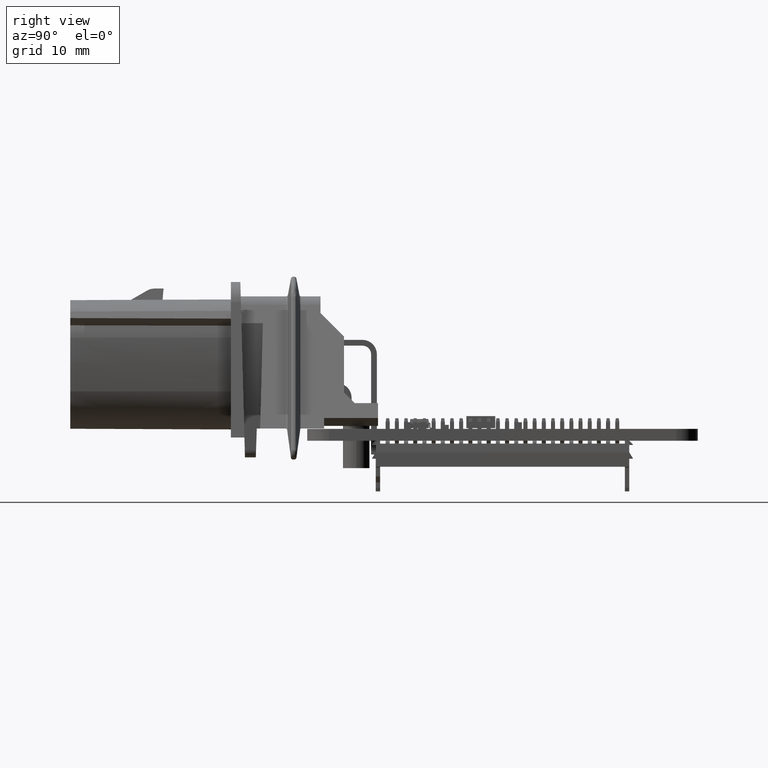
[diagram: clean part render]
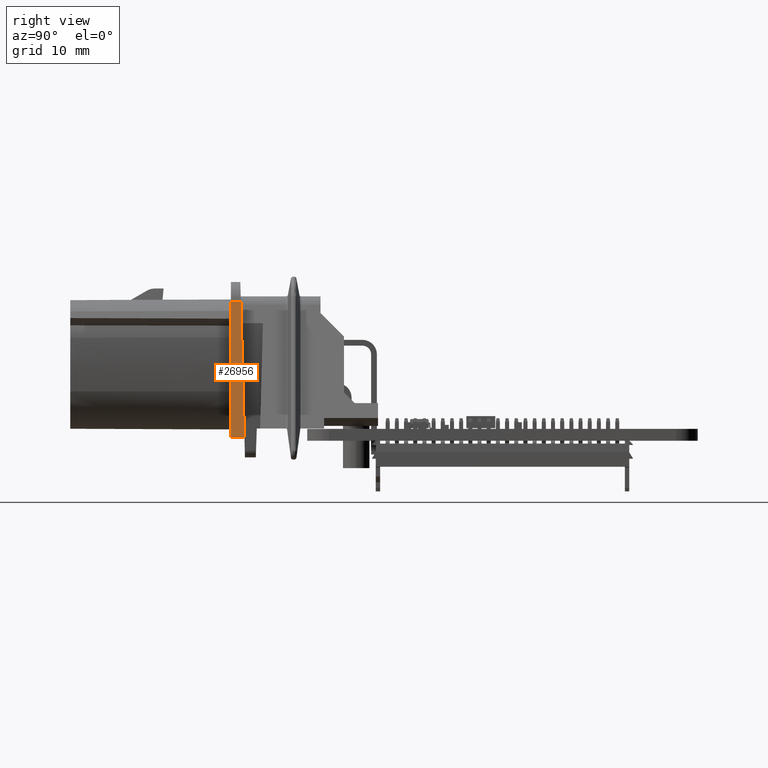
[diagram: same view with one face highlighted and labeled with its STEP entity id]
A machine part, right view. The second image highlights one B-rep face of the part: STEP entity #26956.
In plain terms, the highlighted planar face has unit normal (-0.9864, 0, -0.1644).
Its self-contained STEP definition (entity closure, byte-faithful):
#8201 = PLANE('',#8202);
#8202 = AXIS2_PLACEMENT_3D('',#8203,#8204,#8205);
#8203 = CARTESIAN_POINT('',(44.59598462679,1.15,9.795071795919));
#8204 = DIRECTION('',(0.E+000,-2.617694830787E-002,0.999657324976));
#8205 = DIRECTION('',(-1.,0.E+000,0.E+000));
#8860 = PLANE('',#8861);
#8861 = AXIS2_PLACEMENT_3D('',#8862,#8863,#8864);
#8862 = CARTESIAN_POINT('',(36.91875616118,-8.181083939232,11.675));
#8863 = DIRECTION('',(0.E+000,0.E+000,-1.));
#8864 = DIRECTION('',(0.E+000,-1.,0.E+000));
#16876 = PLANE('',#16877);
#16877 = AXIS2_PLACEMENT_3D('',#16878,#16879,#16880);
#16878 = CARTESIAN_POINT('',(-21.14700985886,1.399845,3.822859505281));
#16879 = DIRECTION('',(0.E+000,1.,0.E+000));
#16880 = DIRECTION('',(1.,0.E+000,-0.E+000));
#17289 = VERTEX_POINT('',#17290);
#17290 = CARTESIAN_POINT('',(22.90599432558,20.14236165811,
    10.29240428871));
#17316 = CYLINDRICAL_SURFACE('',#17317,3.3);
#17317 = AXIS2_PLACEMENT_3D('',#17318,#17319,#17320);
#17318 = CARTESIAN_POINT('',(19.65089437694,19.599845,11.275));
#17319 = DIRECTION('',(-0.E+000,-0.E+000,1.));
#17320 = DIRECTION('',(1.,0.E+000,0.E+000));
#17350 = EDGE_CURVE('',#17289,#17351,#17353,.T.);
#17351 = VERTEX_POINT('',#17352);
#17352 = CARTESIAN_POINT('',(26.02974710193,1.399845,9.801614217493));
#17353 = SURFACE_CURVE('',#17354,(#17358,#17365),.PCURVE_S1.);
#17354 = LINE('',#17355,#17356);
#17355 = CARTESIAN_POINT('',(22.90599432559,20.14236165812,
    10.29240428872));
#17356 = VECTOR('',#17357,1.);
#17357 = DIRECTION('',(0.164344173697,-0.986065042176,
    -2.582102185706E-002));
#17358 = PCURVE('',#8201,#17359);
#17359 = DEFINITIONAL_REPRESENTATION('',(#17360),#17364);
#17360 = LINE('',#17361,#17362);
#17361 = CARTESIAN_POINT('',(21.6899903012,-18.99887209708));
#17362 = VECTOR('',#17363,1.);
#17363 = DIRECTION('',(-0.164344173697,0.986403057868));
#17364 = ( GEOMETRIC_REPRESENTATION_CONTEXT(2) 
PARAMETRIC_REPRESENTATION_CONTEXT() REPRESENTATION_CONTEXT('2D SPACE',''
  ) );
#17365 = PCURVE('',#17366,#17371);
#17366 = PLANE('',#17367);
#17367 = AXIS2_PLACEMENT_3D('',#17368,#17369,#17370);
#17368 = CARTESIAN_POINT('',(22.4547212686,22.85,11.275));
#17369 = DIRECTION('',(-0.986393923832,-0.164398987305,0.E+000));
#17370 = DIRECTION('',(-0.164398987305,0.986393923832,0.E+000));
#17371 = DEFINITIONAL_REPRESENTATION('',(#17372),#17376);
#17372 = LINE('',#17373,#17374);
#17373 = CARTESIAN_POINT('',(-2.744986841933,0.98259571128));
#17374 = VECTOR('',#17375,1.);
#17375 = DIRECTION('',(-0.999666581831,2.582102185706E-002));
#17376 = ( GEOMETRIC_REPRESENTATION_CONTEXT(2) 
PARAMETRIC_REPRESENTATION_CONTEXT() REPRESENTATION_CONTEXT('2D SPACE',''
  ) );
#24809 = EDGE_CURVE('',#24810,#24812,#24814,.T.);
#24810 = VERTEX_POINT('',#24811);
#24811 = CARTESIAN_POINT('',(26.02974710193,1.399845,11.675));
#24812 = VERTEX_POINT('',#24813);
#24813 = CARTESIAN_POINT('',(22.90599432558,20.14236165811,11.675));
#24814 = SURFACE_CURVE('',#24815,(#24819,#24826),.PCURVE_S1.);
#24815 = LINE('',#24816,#24817);
#24816 = CARTESIAN_POINT('',(26.02974710194,1.39984500001,11.67500000001
    ));
#24817 = VECTOR('',#24818,1.);
#24818 = DIRECTION('',(-0.164398987306,0.986393923832,0.E+000));
#24819 = PCURVE('',#8860,#24820);
#24820 = DEFINITIONAL_REPRESENTATION('',(#24821),#24825);
#24821 = LINE('',#24822,#24823);
#24822 = CARTESIAN_POINT('',(-9.580928939242,10.88900905924));
#24823 = VECTOR('',#24824,1.);
#24824 = DIRECTION('',(-0.986393923832,0.164398987306));
#24825 = ( GEOMETRIC_REPRESENTATION_CONTEXT(2) 
PARAMETRIC_REPRESENTATION_CONTEXT() REPRESENTATION_CONTEXT('2D SPACE',''
  ) );
#24826 = PCURVE('',#17366,#24827);
#24827 = DEFINITIONAL_REPRESENTATION('',(#24828),#24832);
#24828 = LINE('',#24829,#24830);
#24829 = CARTESIAN_POINT('',(-21.74603318383,-0.40000000001));
#24830 = VECTOR('',#24831,1.);
#24831 = DIRECTION('',(1.,0.E+000));
#24832 = ( GEOMETRIC_REPRESENTATION_CONTEXT(2) 
PARAMETRIC_REPRESENTATION_CONTEXT() REPRESENTATION_CONTEXT('2D SPACE',''
  ) );
#26956 = ADVANCED_FACE('',(#26957),#17366,.F.);
#26957 = FACE_BOUND('',#26958,.T.);
#26958 = EDGE_LOOP('',(#26959,#26960,#26980,#26981));
#26959 = ORIENTED_EDGE('',*,*,#17350,.F.);
#26960 = ORIENTED_EDGE('',*,*,#26961,.F.);
#26961 = EDGE_CURVE('',#24812,#17289,#26962,.T.);
#26962 = SURFACE_CURVE('',#26963,(#26967,#26974),.PCURVE_S1.);
#26963 = LINE('',#26964,#26965);
#26964 = CARTESIAN_POINT('',(22.90599432559,20.14236165812,
    11.67500000001));
#26965 = VECTOR('',#26966,1.);
#26966 = DIRECTION('',(0.E+000,0.E+000,-1.));
#26967 = PCURVE('',#17366,#26968);
#26968 = DEFINITIONAL_REPRESENTATION('',(#26969),#26973);
#26969 = LINE('',#26970,#26971);
#26970 = CARTESIAN_POINT('',(-2.744986841933,-0.40000000001));
#26971 = VECTOR('',#26972,1.);
#26972 = DIRECTION('',(0.E+000,1.));
#26973 = ( GEOMETRIC_REPRESENTATION_CONTEXT(2) 
PARAMETRIC_REPRESENTATION_CONTEXT() REPRESENTATION_CONTEXT('2D SPACE',''
  ) );
#26974 = PCURVE('',#17316,#26975);
#26975 = DEFINITIONAL_REPRESENTATION('',(#26976),#26979);
#26976 = B_SPLINE_CURVE_WITH_KNOTS('',1,(#26977,#26978),.UNSPECIFIED.,
  .F.,.F.,(2,2),(0.E+000,1.38259571129),.PIECEWISE_BEZIER_KNOTS.);
#26977 = CARTESIAN_POINT('',(0.165148677418,0.4));
#26978 = CARTESIAN_POINT('',(0.165148677418,-0.98259571129));
#26979 = ( GEOMETRIC_REPRESENTATION_CONTEXT(2) 
PARAMETRIC_REPRESENTATION_CONTEXT() REPRESENTATION_CONTEXT('2D SPACE',''
  ) );
#26980 = ORIENTED_EDGE('',*,*,#24809,.F.);
#26981 = ORIENTED_EDGE('',*,*,#26982,.F.);
#26982 = EDGE_CURVE('',#17351,#24810,#26983,.T.);
#26983 = SURFACE_CURVE('',#26984,(#26988,#26995),.PCURVE_S1.);
#26984 = LINE('',#26985,#26986);
#26985 = CARTESIAN_POINT('',(26.02974710194,1.39984500001,9.801614217503
    ));
#26986 = VECTOR('',#26987,1.);
#26987 = DIRECTION('',(0.E+000,0.E+000,1.));
#26988 = PCURVE('',#17366,#26989);
#26989 = DEFINITIONAL_REPRESENTATION('',(#26990),#26994);
#26990 = LINE('',#26991,#26992);
#26991 = CARTESIAN_POINT('',(-21.74603318383,1.473385782497));
#26992 = VECTOR('',#26993,1.);
#26993 = DIRECTION('',(0.E+000,-1.));
#26994 = ( GEOMETRIC_REPRESENTATION_CONTEXT(2) 
PARAMETRIC_REPRESENTATION_CONTEXT() REPRESENTATION_CONTEXT('2D SPACE',''
  ) );
#26995 = PCURVE('',#16876,#26996);
#26996 = DEFINITIONAL_REPRESENTATION('',(#26997),#27001);
#26997 = LINE('',#26998,#26999);
#26998 = CARTESIAN_POINT('',(47.1767569608,-5.978754712222));
#26999 = VECTOR('',#27000,1.);
#27000 = DIRECTION('',(0.E+000,-1.));
#27001 = ( GEOMETRIC_REPRESENTATION_CONTEXT(2) 
PARAMETRIC_REPRESENTATION_CONTEXT() REPRESENTATION_CONTEXT('2D SPACE',''
  ) );